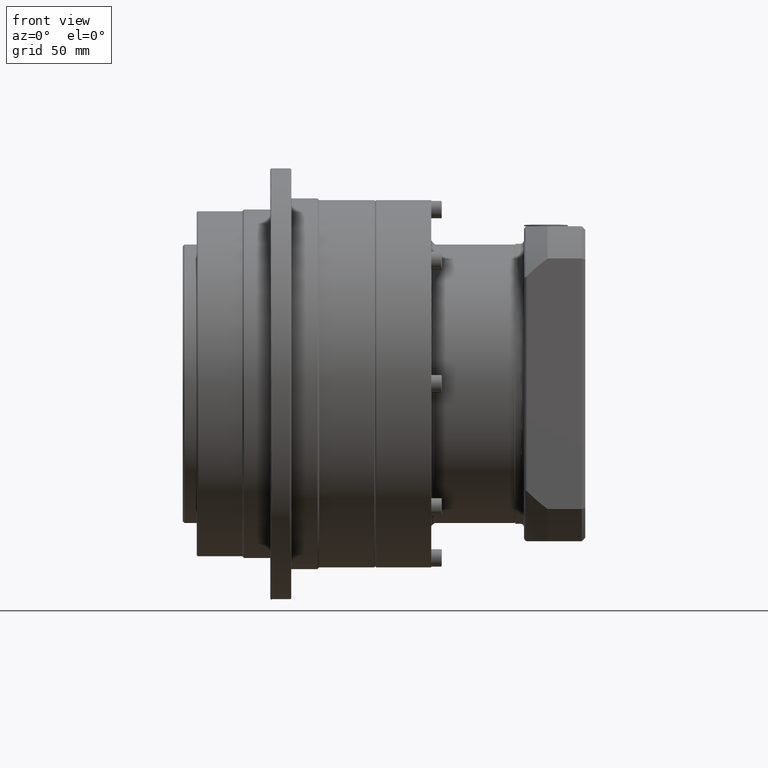
[diagram: clean part render]
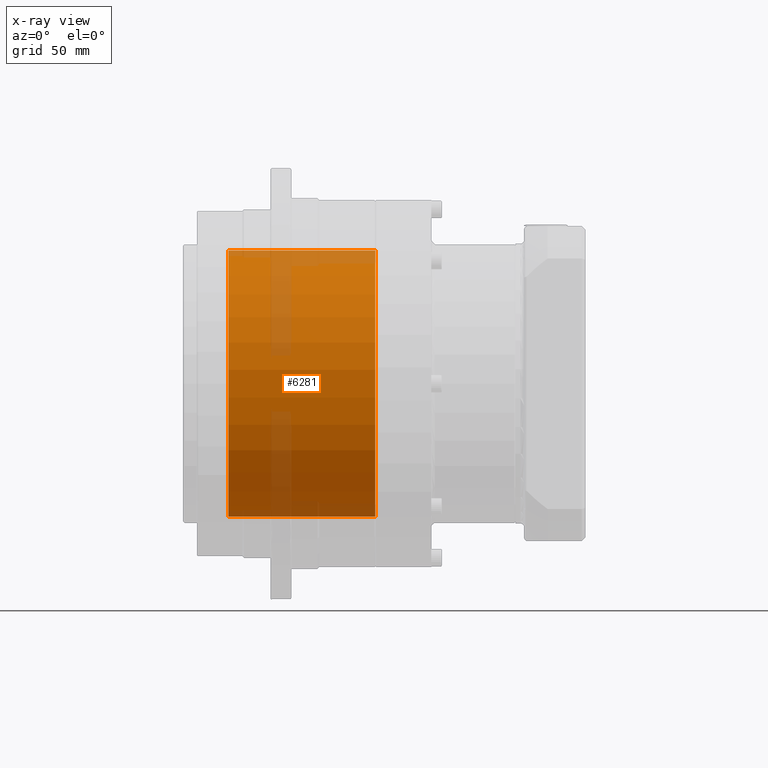
[diagram: x-ray — body ghosted, one internal face saturated and labeled with its STEP entity id]
A machine part, front view, then the same camera in x-ray: the body is ghosted and one INTERNAL B-rep face — a face not visible from any outside direction — is saturated and labeled: STEP entity #6281.
In plain terms, the highlighted cylindrical surface (bore or boss wall) has radius 76.05 mm, axis along (-1, -0, 0).
Its self-contained STEP definition (entity closure, byte-faithful):
#1196=CYLINDRICAL_SURFACE('',#7072,76.05);
#1480=FACE_BOUND('',#2631,.T.);
#1914=FACE_OUTER_BOUND('',#2630,.T.);
#2630=EDGE_LOOP('',(#5651));
#2631=EDGE_LOOP('',(#5652));
#2975=CIRCLE('',#7061,76.05);
#2976=CIRCLE('',#7063,76.05);
#3531=VERTEX_POINT('',#11001);
#3532=VERTEX_POINT('',#11004);
#4239=EDGE_CURVE('',#3531,#3531,#2975,.T.);
#4240=EDGE_CURVE('',#3532,#3532,#2976,.T.);
#5651=ORIENTED_EDGE('',*,*,#4240,.T.);
#5652=ORIENTED_EDGE('',*,*,#4239,.F.);
#6281=ADVANCED_FACE('',(#1914,#1480),#1196,.F.);
#7061=AXIS2_PLACEMENT_3D('',#11002,#8831,#8832);
#7063=AXIS2_PLACEMENT_3D('',#11005,#8835,#8836);
#7072=AXIS2_PLACEMENT_3D('',#11018,#8853,#8854);
#8831=DIRECTION('center_axis',(-1.,-1.94289029309402E-16,2.88295299188087E-15));
#8832=DIRECTION('ref_axis',(2.88295299188087E-15,5.92700093359861E-16,1.));
#8835=DIRECTION('center_axis',(-1.,7.70044812467336E-30,3.24229097250222E-15));
#8836=DIRECTION('ref_axis',(2.88295299188087E-15,5.92700093359861E-16,1.));
#8853=DIRECTION('center_axis',(-1.,-1.94289029309402E-16,2.88295299188087E-15));
#8854=DIRECTION('ref_axis',(2.88295299188087E-15,5.92700093359861E-16,1.));
#11001=CARTESIAN_POINT('',(-1.83539552759836,15.6718015691406,-30.5789379410846));
#11002=CARTESIAN_POINT('Origin',(-1.83539552759814,15.6718015691406,45.4710620589154));
#11004=CARTESIAN_POINT('',(-85.8353955275983,15.6718015691406,-30.5789379410844));
#11005=CARTESIAN_POINT('Origin',(-85.8353955275981,15.6718015691406,45.4710620589157));
#11018=CARTESIAN_POINT('Origin',(-1.83539552759814,15.6718015691406,45.4710620589154));